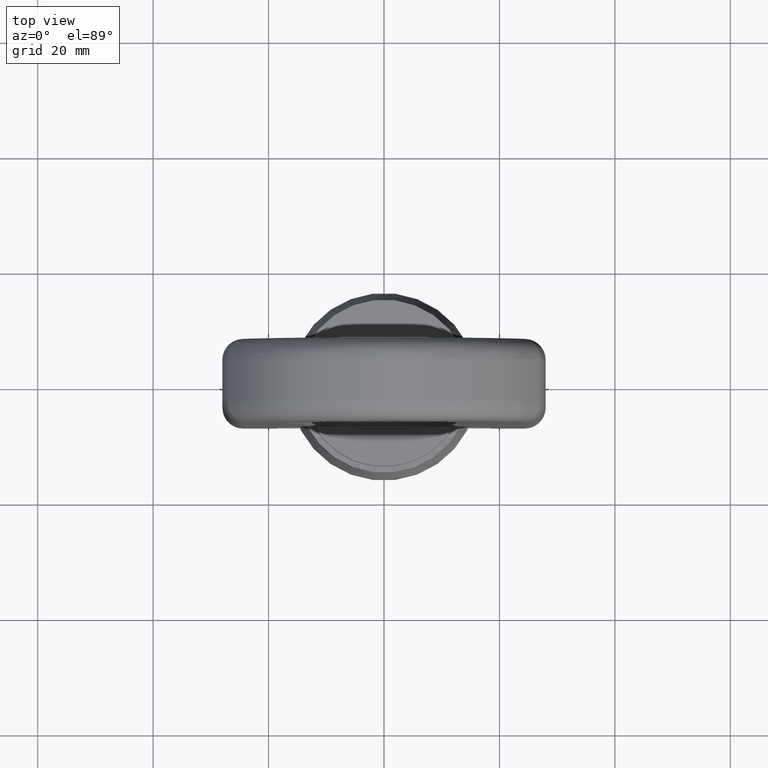
[diagram: clean part render]
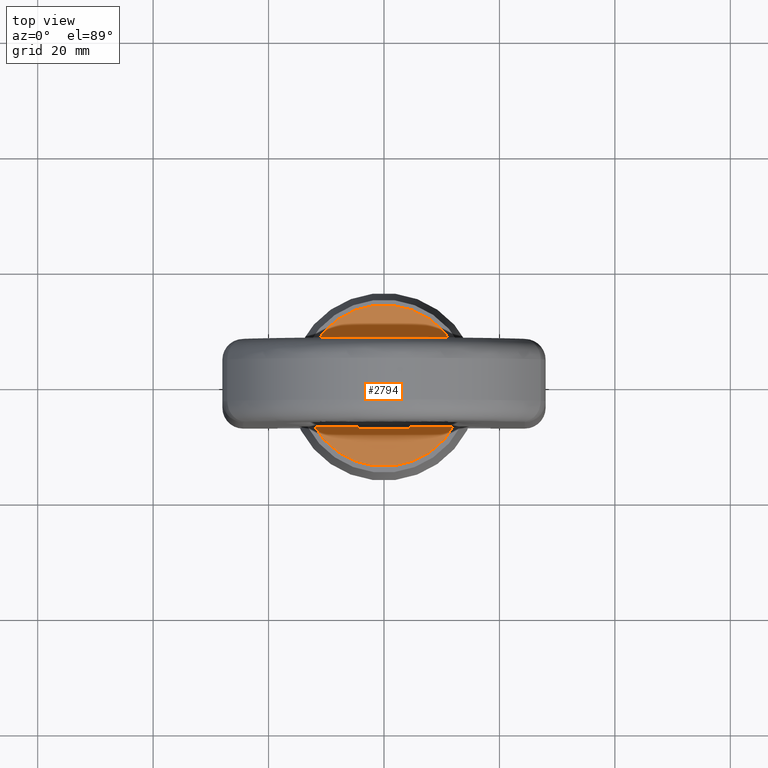
[diagram: same view with one face highlighted and labeled with its STEP entity id]
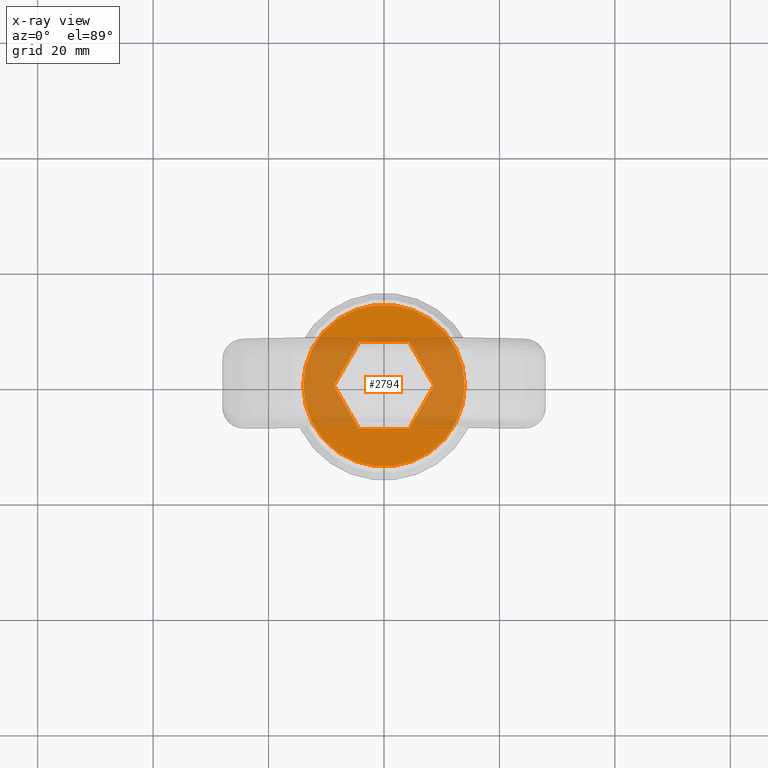
[diagram: x-ray of the same camera — body ghosted, the highlighted face saturated]
A machine part, top view. The second image highlights one B-rep face of the part: STEP entity #2794.
The next image is the same camera in x-ray: the body ghosted, the highlighted face saturated — about 52% of this face is hidden behind the body in this view.
In plain terms, the highlighted planar face has unit normal (0, 0, 1).
Its self-contained STEP definition (entity closure, byte-faithful):
#1729=LINE('',#6961,#2037);
#1730=LINE('',#6964,#2038);
#1731=LINE('',#6966,#2039);
#1732=LINE('',#6968,#2040);
#1733=LINE('',#6970,#2041);
#1734=LINE('',#6972,#2042);
#2037=VECTOR('',#6098,1.);
#2038=VECTOR('',#6099,1.);
#2039=VECTOR('',#6100,1.);
#2040=VECTOR('',#6101,1.);
#2041=VECTOR('',#6102,1.);
#2042=VECTOR('',#6103,1.);
#2668=PLANE('',#5844);
#2794=ADVANCED_FACE('',(#3083,#3084),#2668,.T.);
#3083=FACE_BOUND('',#3152,.T.);
#3084=FACE_BOUND('',#3153,.T.);
#3152=EDGE_LOOP('',(#3448,#3449,#3450,#3451,#3452,#3453));
#3153=EDGE_LOOP('',(#3454));
#3448=ORIENTED_EDGE('',*,*,#5125,.F.);
#3449=ORIENTED_EDGE('',*,*,#5126,.F.);
#3450=ORIENTED_EDGE('',*,*,#5127,.F.);
#3451=ORIENTED_EDGE('',*,*,#5128,.F.);
#3452=ORIENTED_EDGE('',*,*,#5129,.F.);
#3453=ORIENTED_EDGE('',*,*,#5130,.F.);
#3454=ORIENTED_EDGE('',*,*,#5124,.F.);
#4704=VERTEX_POINT('',#6959);
#4705=VERTEX_POINT('',#6962);
#4706=VERTEX_POINT('',#6963);
#4707=VERTEX_POINT('',#6965);
#4708=VERTEX_POINT('',#6967);
#4709=VERTEX_POINT('',#6969);
#4710=VERTEX_POINT('',#6971);
#5124=EDGE_CURVE('',#4704,#4704,#5756,.T.);
#5125=EDGE_CURVE('',#4705,#4706,#1729,.T.);
#5126=EDGE_CURVE('',#4707,#4705,#1730,.T.);
#5127=EDGE_CURVE('',#4708,#4707,#1731,.T.);
#5128=EDGE_CURVE('',#4709,#4708,#1732,.T.);
#5129=EDGE_CURVE('',#4710,#4709,#1733,.T.);
#5130=EDGE_CURVE('',#4706,#4710,#1734,.T.);
#5756=CIRCLE('',#5842,14.);
#5842=AXIS2_PLACEMENT_3D('',#6958,#6094,#6095);
#5844=AXIS2_PLACEMENT_3D('',#6973,#6104,#6105);
#6094=DIRECTION('',(0.,0.,-1.));
#6095=DIRECTION('',(-1.,0.,0.));
#6098=DIRECTION('',(0.5,-0.866025403784438,0.));
#6099=DIRECTION('',(-0.5,-0.866025403784438,0.));
#6100=DIRECTION('',(-1.,0.,0.));
#6101=DIRECTION('',(-0.5,0.866025403784438,0.));
#6102=DIRECTION('',(0.5,0.866025403784438,0.));
#6103=DIRECTION('',(1.,0.,0.));
#6104=DIRECTION('',(0.,0.,1.));
#6105=DIRECTION('',(1.,0.,0.));
#6958=CARTESIAN_POINT('',(0.,0.,23.));
#6959=CARTESIAN_POINT('',(-14.,0.,23.));
#6961=CARTESIAN_POINT('',(-8.66025403784439,0.,23.));
#6962=CARTESIAN_POINT('',(-8.66025403784439,0.,23.));
#6963=CARTESIAN_POINT('',(-4.33012701892219,-7.5,23.));
#6964=CARTESIAN_POINT('',(-4.33012701892219,7.5,23.));
#6965=CARTESIAN_POINT('',(-4.33012701892219,7.5,23.));
#6966=CARTESIAN_POINT('',(4.33012701892219,7.5,23.));
#6967=CARTESIAN_POINT('',(4.33012701892219,7.5,23.));
#6968=CARTESIAN_POINT('',(8.66025403784439,0.,23.));
#6969=CARTESIAN_POINT('',(8.66025403784439,-8.67361737988404E-16,23.));
#6970=CARTESIAN_POINT('',(4.33012701892219,-7.5,23.));
#6971=CARTESIAN_POINT('',(4.33012701892219,-7.5,23.));
#6972=CARTESIAN_POINT('',(-4.33012701892219,-7.5,23.));
#6973=CARTESIAN_POINT('',(0.,14.,23.));